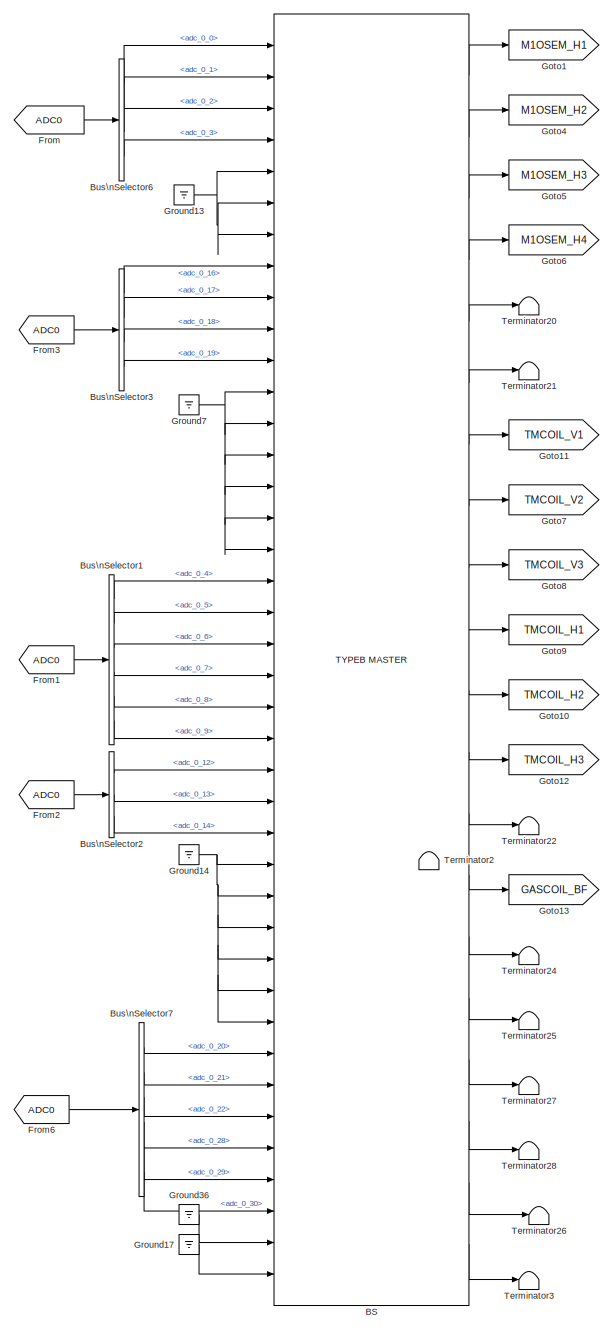
[diagram: root canvas - part 1/3, center side, full height]
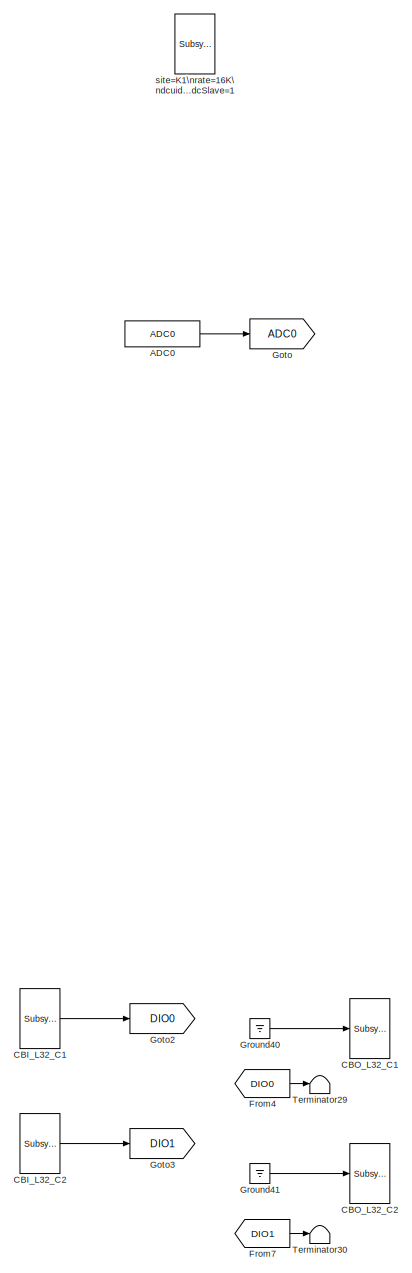
[diagram: root canvas - part 2/3, left side, full height]
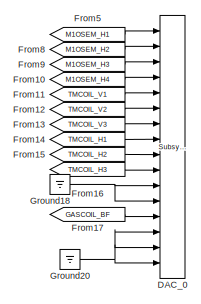
[diagram: root canvas - part 3/3, top right region]
MODEL k1visbs_20170206
KIND model
BLOCK [Reference] ADC0  REF=cdsAdcx0/ADC0
  AttributesFormatString = %<Description>\\n%<Tag>
  Description = type-GSC_16AI64SSA\ncard_num=0
  Ports = [0, 1]
  SID = 570
  SourceBlock = cdsAdcx0/ADC0
  SourceType = SubSystem
  Tag = cdsAdc
BLOCK [Reference] BS  REF=TYPEB_MASTER/TYPEB MASTER
  AttributesFormatString = %<Description>
  Description = TYPEB MASTER
  Ports = [40, 20]
  SID = 674
  SourceBlock = TYPEB_MASTER/TYPEB MASTER
  SourceType = SubSystem
BLOCK [BusSelector] Bus\nSelector1
  AttributesFormatString = %<Description>
  Description = ADC Selector
  OutputSignals = adc_0_4,adc_0_5,adc_0_6,adc_0_7,adc_0_8,adc_0_9
  Ports = [1, 6]
  SID = 573
BLOCK [BusSelector] Bus\nSelector2
  AttributesFormatString = %<Description>
  Description = ADC Selector
  OutputSignals = adc_0_12,adc_0_13,adc_0_14
  Ports = [1, 3]
  SID = 574
BLOCK [BusSelector] Bus\nSelector3
  AttributesFormatString = %<Description>
  Description = ADC Selector
  OutputSignals = adc_0_16,adc_0_17,adc_0_18,adc_0_19
  Ports = [1, 4]
  SID = 575
BLOCK [BusSelector] Bus\nSelector6
  AttributesFormatString = %<Description>
  Description = ADC Selector
  OutputSignals = adc_0_0,adc_0_1,adc_0_2,adc_0_3
  Ports = [1, 4]
  SID = 577
BLOCK [BusSelector] Bus\nSelector7
  AttributesFormatString = %<Description>
  Description = ADC Selector
  OutputSignals = adc_0_20,adc_0_21,adc_0_22,adc_0_28,adc_0_29,adc_0_30
  Ports = [1, 6]
  SID = 578
BLOCK [Reference] CBI_L32_C1  REF=cdsCDI64/Subsystem
  AttributesFormatString = %<Tag>\\n%<Description>
  Description = card_num=0
  Ports = [0, 1]
  SID = 579
  SourceBlock = cdsCDI64/Subsystem
  SourceType = SubSystem
  Tag = cdsCDI64
BLOCK [Reference] CBI_L32_C2  REF=cdsCDI64/Subsystem
  AttributesFormatString = %<Tag>\\n%<Description>
  Description = card_num=2
  Ports = [0, 1]
  SID = 580
  SourceBlock = cdsCDI64/Subsystem
  SourceType = SubSystem
  Tag = cdsCDI64
BLOCK [Reference] CBO_L32_C1  REF=cdsCDO64/Subsystem
  AttributesFormatString = %<Tag>\\n%<Description>
  Description = card_num=0
  Ports = [1]
  SID = 581
  SourceBlock = cdsCDO64/Subsystem
  SourceType = SubSystem
  Tag = cdsCDO64
BLOCK [Reference] CBO_L32_C2  REF=cdsCDO64/Subsystem
  AttributesFormatString = %<Tag>\\n%<Description>
  Description = card_num=2
  Ports = [1]
  SID = 582
  SourceBlock = cdsCDO64/Subsystem
  SourceType = SubSystem
  Tag = cdsCDO64
BLOCK [Reference] DAC_0  REF=dac/Subsystem  (lib defined in slx_40ef132df75b, slx_b7657ccccc5b, +4 more)
  AttributesFormatString = %<Description>
  Description = type=GSC_16AO16,\ncard_num=0
  Ports = [16]
  SID = 583
  SourceBlock = dac/Subsystem
  SourceType = SubSystem
BLOCK [From] From
  GotoTag = ADC0
  SID = 585
BLOCK [From] From1
  GotoTag = ADC0
  SID = 586
BLOCK [From] From10
  GotoTag = M1OSEM_H4
  SID = 655
BLOCK [From] From11
  GotoTag = TMCOIL_V1
  SID = 666
BLOCK [From] From12
  GotoTag = TMCOIL_V2
  SID = 667
BLOCK [From] From13
  GotoTag = TMCOIL_V3
  SID = 668
BLOCK [From] From14
  GotoTag = TMCOIL_H1
  SID = 669
BLOCK [From] From15
  GotoTag = TMCOIL_H2
  SID = 670
BLOCK [From] From16
  GotoTag = TMCOIL_H3
  SID = 671
BLOCK [From] From17
  GotoTag = GASCOIL_BF
  SID = 673
BLOCK [From] From2
  GotoTag = ADC0
  SID = 587
BLOCK [From] From3
  GotoTag = ADC0
  SID = 588
BLOCK [From] From4
  GotoTag = DIO0
  SID = 589
BLOCK [From] From5
  GotoTag = M1OSEM_H1
  SID = 652
BLOCK [From] From6
  GotoTag = ADC0
  SID = 591
BLOCK [From] From7
  GotoTag = DIO1
  SID = 592
BLOCK [From] From8
  GotoTag = M1OSEM_H2
  SID = 653
BLOCK [From] From9
  GotoTag = M1OSEM_H3
  SID = 654
BLOCK [Goto] Goto
  GotoTag = ADC0
  SID = 594
BLOCK [Goto] Goto1
  GotoTag = M1OSEM_H1
  SID = 648
BLOCK [Goto] Goto10
  GotoTag = TMCOIL_H2
  SID = 661
BLOCK [Goto] Goto11
  GotoTag = TMCOIL_V1
  SID = 662
BLOCK [Goto] Goto12
  GotoTag = TMCOIL_H3
  SID = 663
BLOCK [Goto] Goto13
  GotoTag = GASCOIL_BF
  SID = 672
BLOCK [Goto] Goto2
  GotoTag = DIO0
  SID = 596
BLOCK [Goto] Goto3
  GotoTag = DIO1
  SID = 597
BLOCK [Goto] Goto4
  GotoTag = M1OSEM_H2
  SID = 649
BLOCK [Goto] Goto5
  GotoTag = M1OSEM_H3
  SID = 650
BLOCK [Goto] Goto6
  GotoTag = M1OSEM_H4
  SID = 651
BLOCK [Goto] Goto7
  GotoTag = TMCOIL_V2
  SID = 658
BLOCK [Goto] Goto8
  GotoTag = TMCOIL_V3
  SID = 659
BLOCK [Goto] Goto9
  GotoTag = TMCOIL_H1
  SID = 660
BLOCK [Ground] Ground13
  SID = 602
BLOCK [Ground] Ground14
  SID = 603
BLOCK [Ground] Ground17
  SID = 606
BLOCK [Ground] Ground18
  SID = 607
BLOCK [Ground] Ground20
  SID = 610
BLOCK [Ground] Ground36
  SID = 613
BLOCK [Ground] Ground40
  SID = 618
BLOCK [Ground] Ground41
  SID = 619
BLOCK [Ground] Ground7
  SID = 620
BLOCK [Terminator] Terminator2
  SID = 629
BLOCK [Terminator] Terminator20
  SID = 630
BLOCK [Terminator] Terminator21
  SID = 631
BLOCK [Terminator] Terminator22
  SID = 632
BLOCK [Terminator] Terminator24
  SID = 634
BLOCK [Terminator] Terminator25
  SID = 635
BLOCK [Terminator] Terminator26
  SID = 636
BLOCK [Terminator] Terminator27
  SID = 637
BLOCK [Terminator] Terminator28
  SID = 638
BLOCK [Terminator] Terminator29
  SID = 639
BLOCK [Terminator] Terminator3
  SID = 646
BLOCK [Terminator] Terminator30
  SID = 640
BLOCK [Reference] site=K1\nrate=16K\ndcuid=96\nhost=k1pr2\nspecific_cpu=4\nadcSlave=1  REF=cdsParameters/Subsystem
  AttributesFormatString = %<Tag>
  Description = Purpose:                                                                                                                                                                                                                                \nProvide system parameters to the FE code generator to properly configure the generated EPICS names, rep rate of the FE controller, and the Data Acquisition node ID fo...<+2934ch>
  Ports = [1, 1]
  SID = 642
  SourceBlock = cdsParameters/Subsystem
  SourceType = SubSystem
  Tag = cdsParameters
LINE ADC0:1 -> Goto:1
LINE BS:1 -> Goto1:1
LINE BS:10 -> Goto9:1
LINE BS:11 -> Goto10:1
LINE BS:12 -> Goto12:1
LINE BS:13 -> Terminator22:1
LINE BS:14 -> Goto13:1
LINE BS:15 -> Terminator24:1
LINE BS:16 -> Terminator25:1
LINE BS:17 -> Terminator27:1
LINE BS:18 -> Terminator28:1
LINE BS:19 -> Terminator26:1
LINE BS:2 -> Goto4:1
LINE BS:20 -> Terminator3:1
LINE BS:3 -> Goto5:1
LINE BS:4 -> Goto6:1
LINE BS:5 -> Terminator20:1
LINE BS:6 -> Terminator21:1
LINE BS:7 -> Goto11:1
LINE BS:8 -> Goto7:1
LINE BS:9 -> Goto8:1
LINE Bus\nSelector1:1 -> BS:18
LINE Bus\nSelector1:2 -> BS:19
LINE Bus\nSelector1:3 -> BS:20
LINE Bus\nSelector1:4 -> BS:21
LINE Bus\nSelector1:5 -> BS:22
LINE Bus\nSelector1:6 -> BS:23
LINE Bus\nSelector2:1 -> BS:24
LINE Bus\nSelector2:2 -> BS:25
LINE Bus\nSelector2:3 -> BS:26
LINE Bus\nSelector3:1 -> BS:8
LINE Bus\nSelector3:2 -> BS:9
LINE Bus\nSelector3:3 -> BS:10
LINE Bus\nSelector3:4 -> BS:11
LINE Bus\nSelector6:1 -> BS:1
LINE Bus\nSelector6:2 -> BS:2
LINE Bus\nSelector6:3 -> BS:3
LINE Bus\nSelector6:4 -> BS:4
LINE Bus\nSelector7:1 -> BS:33
LINE Bus\nSelector7:2 -> BS:34
LINE Bus\nSelector7:3 -> BS:35
LINE Bus\nSelector7:4 -> BS:36
LINE Bus\nSelector7:5 -> BS:37
LINE Bus\nSelector7:6 -> BS:38
LINE CBI_L32_C1:1 -> Goto2:1
LINE CBI_L32_C2:1 -> Goto3:1
LINE From10:1 -> DAC_0:4
LINE From11:1 -> DAC_0:5
LINE From12:1 -> DAC_0:6
LINE From13:1 -> DAC_0:7
LINE From14:1 -> DAC_0:8
LINE From15:1 -> DAC_0:9
LINE From16:1 -> DAC_0:10
LINE From17:1 -> DAC_0:13
LINE From1:1 -> Bus\nSelector1:1
LINE From2:1 -> Bus\nSelector2:1
LINE From3:1 -> Bus\nSelector3:1
LINE From4:1 -> Terminator29:1
LINE From5:1 -> DAC_0:1
LINE From6:1 -> Bus\nSelector7:1
LINE From7:1 -> Terminator30:1
LINE From8:1 -> DAC_0:2
LINE From9:1 -> DAC_0:3
LINE From:1 -> Bus\nSelector6:1
NET Ground13:1 -> BS:5, BS:6, BS:7
NET Ground14:1 -> BS:27, BS:28, BS:29, BS:30, BS:31, BS:32
LINE Ground17:1 -> BS:40
NET Ground18:1 -> DAC_0:11, DAC_0:12
NET Ground20:1 -> DAC_0:14, DAC_0:15, DAC_0:16
LINE Ground36:1 -> BS:39
LINE Ground40:1 -> CBO_L32_C1:1
LINE Ground41:1 -> CBO_L32_C2:1
NET Ground7:1 -> BS:12, BS:13, BS:14, BS:15, BS:16, BS:17
note: NET lines group one-source signal fan-out (src -> all destinations, sorted); 1:1 wires keep LINE
